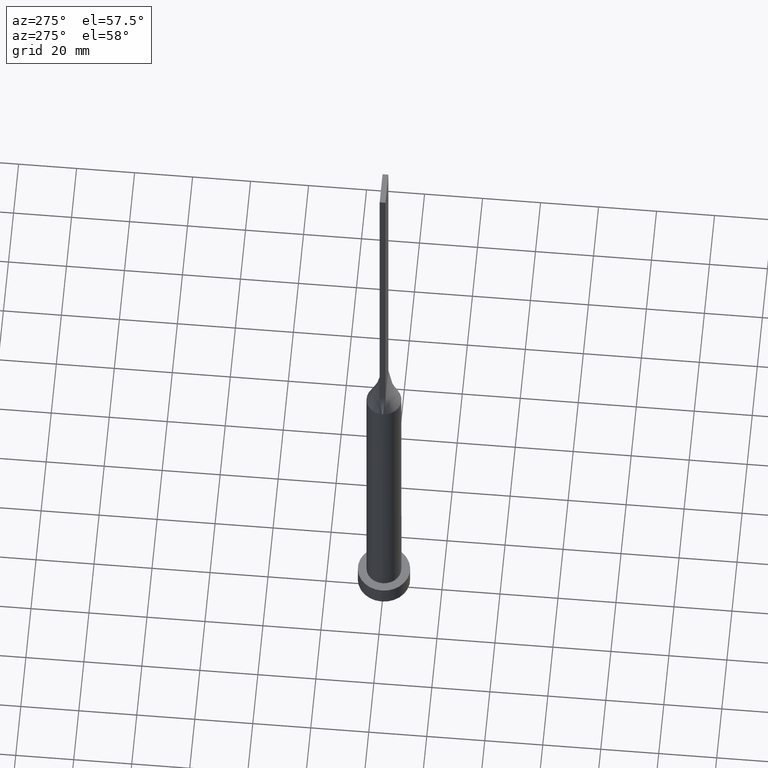
[diagram: clean part render]
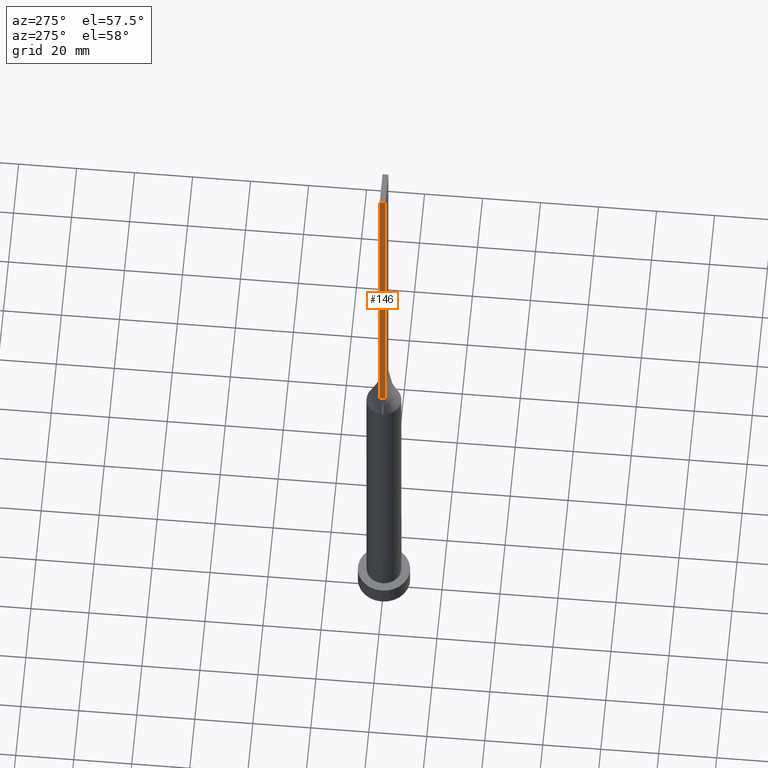
[diagram: same view with one face highlighted and labeled with its STEP entity id]
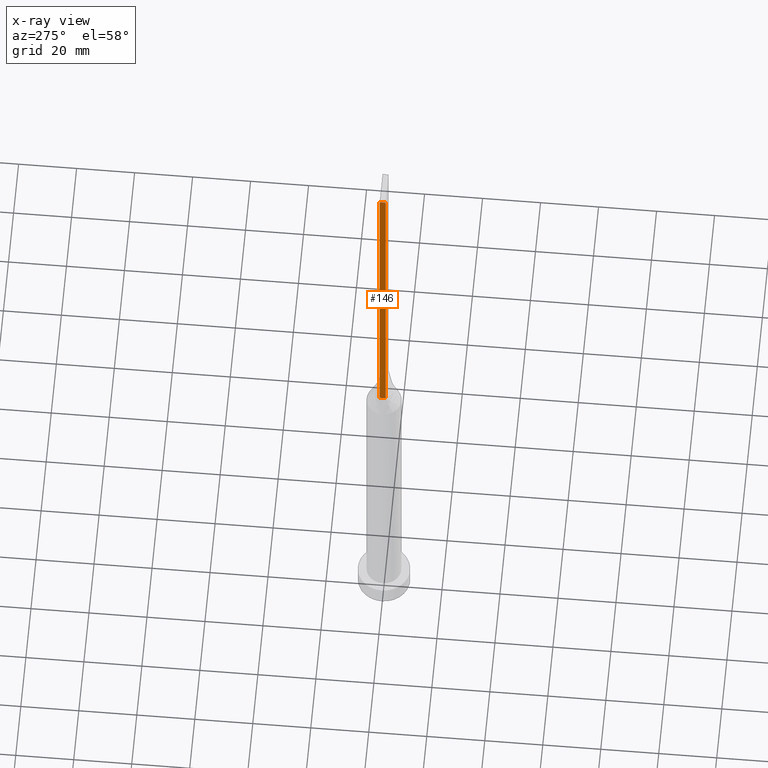
[diagram: x-ray of the same camera — body ghosted, the highlighted face saturated]
A machine part, auxiliary view. The second image highlights one B-rep face of the part: STEP entity #146.
The next image is the same camera in x-ray: the body ghosted, the highlighted face saturated — about 0% of this face is hidden behind the body in this view.
In plain terms, the highlighted planar face has unit normal (1, 0, -0).
Its self-contained STEP definition (entity closure, byte-faithful):
#33 = CARTESIAN_POINT ( 'NONE',  ( -5.750000000000000000, 1.000000000000000000, 250.0000000000000000 ) ) ;
#46 = DIRECTION ( 'NONE',  ( -0.000000000000000000, 0.000000000000000000, -1.000000000000000000 ) ) ;
#55 = LINE ( 'NONE', #393, #426 ) ;
#67 = CARTESIAN_POINT ( 'NONE',  ( -5.750000000000000000, -0.9999999999999988898, 125.0000000000000000 ) ) ;
#71 = DIRECTION ( 'NONE',  ( -0.000000000000000000, -0.000000000000000000, -1.000000000000000000 ) ) ;
#88 = AXIS2_PLACEMENT_3D ( 'NONE', #279, #191, #46 ) ;
#146 = ADVANCED_FACE ( 'NONE', ( #558 ), #621, .F. ) ;
#177 = EDGE_CURVE ( 'NONE', #214, #331, #327, .T. ) ;
#180 = ORIENTED_EDGE ( 'NONE', *, *, #186, .T. ) ;
#186 = EDGE_CURVE ( 'NONE', #361, #214, #210, .T. ) ;
#191 = DIRECTION ( 'NONE',  ( 1.000000000000000000, 0.000000000000000000, -0.000000000000000000 ) ) ;
#201 = CARTESIAN_POINT ( 'NONE',  ( -5.750000000000000000, -0.9999999999999988898, 250.0000000000000000 ) ) ;
#203 = DIRECTION ( 'NONE',  ( 0.000000000000000000, -1.000000000000000000, 0.000000000000000000 ) ) ;
#204 = DIRECTION ( 'NONE',  ( 0.000000000000000000, -1.000000000000000000, 0.000000000000000000 ) ) ;
#210 = LINE ( 'NONE', #381, #553 ) ;
#214 = VERTEX_POINT ( 'NONE', #230 ) ;
#223 = EDGE_CURVE ( 'NONE', #361, #240, #437, .T. ) ;
#230 = CARTESIAN_POINT ( 'NONE',  ( -5.750000000000000000, 1.000000000000000000, 125.0000000000000000 ) ) ;
#240 = VERTEX_POINT ( 'NONE', #201 ) ;
#245 = EDGE_CURVE ( 'NONE', #240, #331, #55, .T. ) ;
#261 = EDGE_LOOP ( 'NONE', ( #473, #416, #552, #180 ) ) ;
#279 = CARTESIAN_POINT ( 'NONE',  ( -5.750000000000000000, 1.000000000000000000, 250.0000000000000000 ) ) ;
#327 = LINE ( 'NONE', #471, #596 ) ;
#331 = VERTEX_POINT ( 'NONE', #67 ) ;
#360 = CARTESIAN_POINT ( 'NONE',  ( -5.750000000000000000, 1.000000000000000000, 250.0000000000000000 ) ) ;
#361 = VERTEX_POINT ( 'NONE', #360 ) ;
#381 = CARTESIAN_POINT ( 'NONE',  ( -5.750000000000000000, 1.000000000000000000, 250.0000000000000000 ) ) ;
#390 = DIRECTION ( 'NONE',  ( -0.000000000000000000, -0.000000000000000000, -1.000000000000000000 ) ) ;
#393 = CARTESIAN_POINT ( 'NONE',  ( -5.750000000000000000, -0.9999999999999988898, 250.0000000000000000 ) ) ;
#416 = ORIENTED_EDGE ( 'NONE', *, *, #245, .F. ) ;
#426 = VECTOR ( 'NONE', #390, 1000.000000000000000 ) ;
#437 = LINE ( 'NONE', #33, #503 ) ;
#471 = CARTESIAN_POINT ( 'NONE',  ( -5.750000000000000000, 1.000000000000000000, 125.0000000000000000 ) ) ;
#473 = ORIENTED_EDGE ( 'NONE', *, *, #177, .T. ) ;
#503 = VECTOR ( 'NONE', #203, 1000.000000000000000 ) ;
#552 = ORIENTED_EDGE ( 'NONE', *, *, #223, .F. ) ;
#553 = VECTOR ( 'NONE', #71, 1000.000000000000000 ) ;
#558 = FACE_OUTER_BOUND ( 'NONE', #261, .T. ) ;
#596 = VECTOR ( 'NONE', #204, 1000.000000000000000 ) ;
#621 = PLANE ( 'NONE',  #88 ) ;